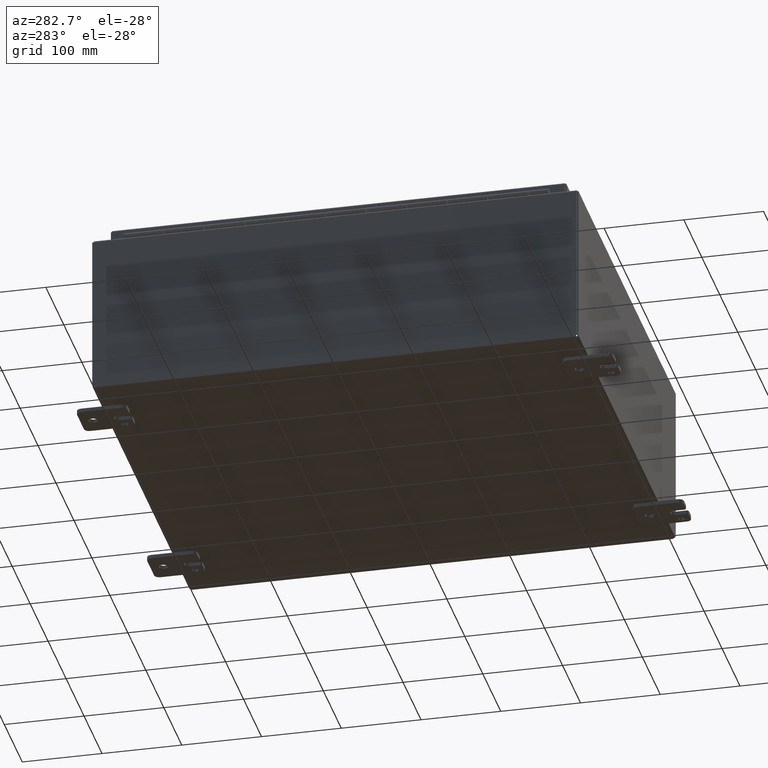
[diagram: clean part render]
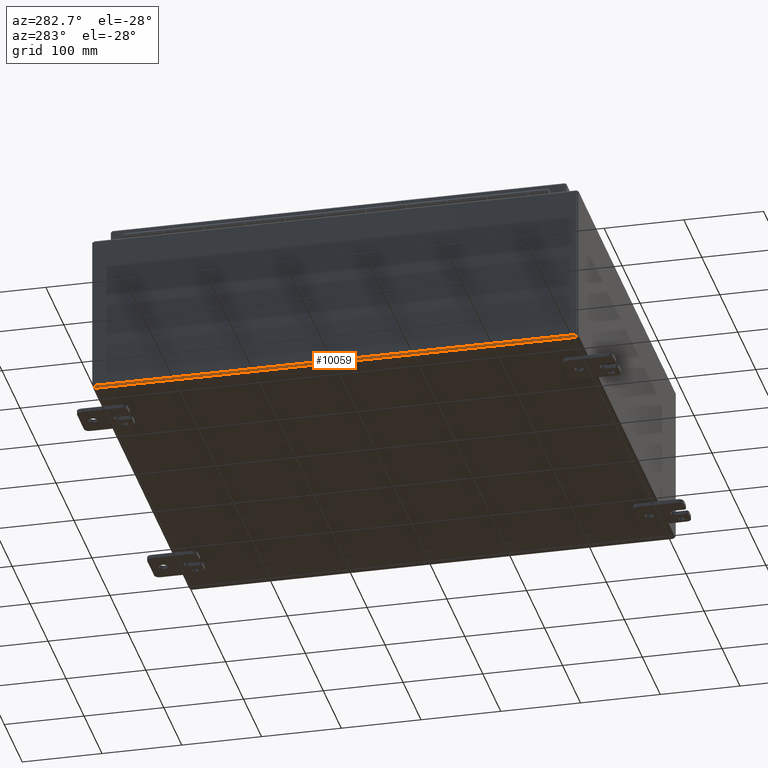
[diagram: same view with one face highlighted and labeled with its STEP entity id]
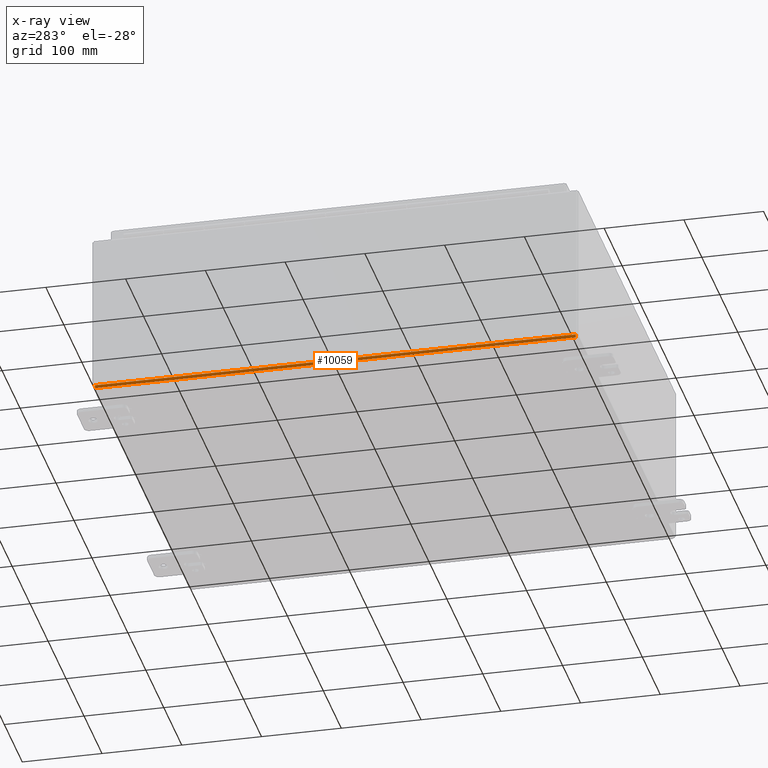
[diagram: x-ray of the same camera — body ghosted, the highlighted face saturated]
A machine part, auxiliary view. The second image highlights one B-rep face of the part: STEP entity #10059.
The next image is the same camera in x-ray: the body ghosted, the highlighted face saturated — about 0% of this face is hidden behind the body in this view.
In plain terms, the highlighted cylindrical surface (edge-blend (fillet) strip) has radius 2.6733 mm, axis along (-0, 1, 0).
Its self-contained STEP definition (entity closure, byte-faithful):
#186=B_SPLINE_CURVE_WITH_KNOTS($,3,(#15229,#15230,#15231,#15232,#15233,
#15234,#15235,#15236,#15237,#15238),.UNSPECIFIED.,.F.,.F.,(4,3,3,4),(0.906743945410185,
1.28620244905859,1.665660952707,2.23484870817961),.UNSPECIFIED.);
#187=B_SPLINE_CURVE_WITH_KNOTS($,3,(#15274,#15275,#15276,#15277,#15278,
#15279,#15280,#15281,#15282,#15283),.UNSPECIFIED.,.F.,.F.,(4,3,3,4),(-2.23484870817947,
-1.8553902045311,-1.47593170088274,-0.906743945410191),.UNSPECIFIED.);
#754=CYLINDRICAL_SURFACE($,#10748,0.10525);
#1047=FACE_OUTER_BOUND($,#1621,.T.);
#1621=EDGE_LOOP($,(#7132,#7133,#7134,#7135));
#2367=LINE($,#15068,#3332);
#2389=LINE($,#15285,#3354);
#3332=VECTOR($,#12234,23.7655336786487);
#3354=VECTOR($,#12286,23.7655336786487);
#4296=VERTEX_POINT($,#15065);
#4297=VERTEX_POINT($,#15067);
#4314=VERTEX_POINT($,#15228);
#4317=VERTEX_POINT($,#15272);
#5346=EDGE_CURVE($,#4296,#4297,#2367,.T.);
#5373=EDGE_CURVE($,#4314,#4297,#186,.T.);
#5380=EDGE_CURVE($,#4296,#4317,#187,.T.);
#5381=EDGE_CURVE($,#4314,#4317,#2389,.T.);
#7132=ORIENTED_EDGE($,*,*,#5346,.F.);
#7133=ORIENTED_EDGE($,*,*,#5380,.T.);
#7134=ORIENTED_EDGE($,*,*,#5381,.F.);
#7135=ORIENTED_EDGE($,*,*,#5373,.T.);
#10059=ADVANCED_FACE($,(#1047),#754,.T.);
#10748=AXIS2_PLACEMENT_3D($,#15284,#12284,#12285);
#12234=DIRECTION($,(3.06161699786838E-016,-1.,2.00995970738844E-049));
#12284=DIRECTION('center_axis',(-3.06161699786838E-016,1.,0.));
#12285=DIRECTION('ref_axis',(-1.,0.,-4.15292806637798E-016));
#12286=DIRECTION($,(-3.06836959123601E-016,1.,0.));
#15065=CARTESIAN_POINT('',(-7.33938689831855E-015,23.8827668393244,0.10525));
#15067=CARTESIAN_POINT('',(-6.32907109221064E-017,0.117233160675635,0.10525));
#15068=CARTESIAN_POINT($,(-3.70134989813703E-015,12.,0.10525));
#15228=CARTESIAN_POINT('',(0.10525,0.117233160675635,0.));
#15229=CARTESIAN_POINT('Ctrl Pts',(0.10525,0.117233160675635,-2.18547839493141E-017));
#15230=CARTESIAN_POINT('Ctrl Pts',(0.0918900513956841,0.122690016952627,
-1.50251639651535E-017));
#15231=CARTESIAN_POINT('Ctrl Pts',(0.0764397411280394,0.126801744950039,
0.00265492346010044));
#15232=CARTESIAN_POINT('Ctrl Pts',(0.0616399948861271,0.129289404757478,
0.00942967076093532));
#15233=CARTESIAN_POINT('Ctrl Pts',(0.0468402486442148,0.131777064564917,
0.0162044180617702));
#15234=CARTESIAN_POINT('Ctrl Pts',(0.032691066428035,0.132640656182382,
0.0270989892033395));
#15235=CARTESIAN_POINT('Ctrl Pts',(0.0223667902017247,0.131795995390068,
0.0403188088767343));
#15236=CARTESIAN_POINT('Ctrl Pts',(0.00688037586225914,0.130529004201596,
0.0601485383868266));
#15237=CARTESIAN_POINT('Ctrl Pts',(-8.19554398099279E-017,0.125418445091123,
0.0852100770935263));
#15238=CARTESIAN_POINT('Ctrl Pts',(-8.74191357972564E-017,0.117233160675635,
0.10525));
#15272=CARTESIAN_POINT('',(0.105249999999993,23.8827668393244,0.));
#15274=CARTESIAN_POINT('Ctrl Pts',(-7.34320740696954E-015,23.8827668393244,
0.105249999999999));
#15275=CARTESIAN_POINT('Ctrl Pts',(-7.24360878220053E-015,23.8773099830474,
0.0918900513956835));
#15276=CARTESIAN_POINT('Ctrl Pts',(0.00265041396645611,23.8732018406075,
0.076455498200298));
#15277=CARTESIAN_POINT('Ctrl Pts',(0.00941371837844607,23.8707171589619,
0.0616832050436637));
#15278=CARTESIAN_POINT('Ctrl Pts',(0.016177022790436,23.8682324773163,0.0469109118870294));
#15279=CARTESIAN_POINT('Ctrl Pts',(0.0270532176479526,23.867371256465,0.0328008787691463));
#15280=CARTESIAN_POINT('Ctrl Pts',(0.0402737453079472,23.8682148647095,
0.0224731262436454));
#15281=CARTESIAN_POINT('Ctrl Pts',(0.060104536797939,23.8694802770764,0.00698149745539407));
#15282=CARTESIAN_POINT('Ctrl Pts',(0.0852100770935063,23.8745815549089,
2.79741234551221E-015));
#15283=CARTESIAN_POINT('Ctrl Pts',(0.105249999999978,23.8827668393244,-2.18547839493141E-017));
#15284=CARTESIAN_POINT('Origin',(0.105249999999993,23.8827668393244,0.10525));
#15285=CARTESIAN_POINT($,(0.105249999999998,6.052625,0.));